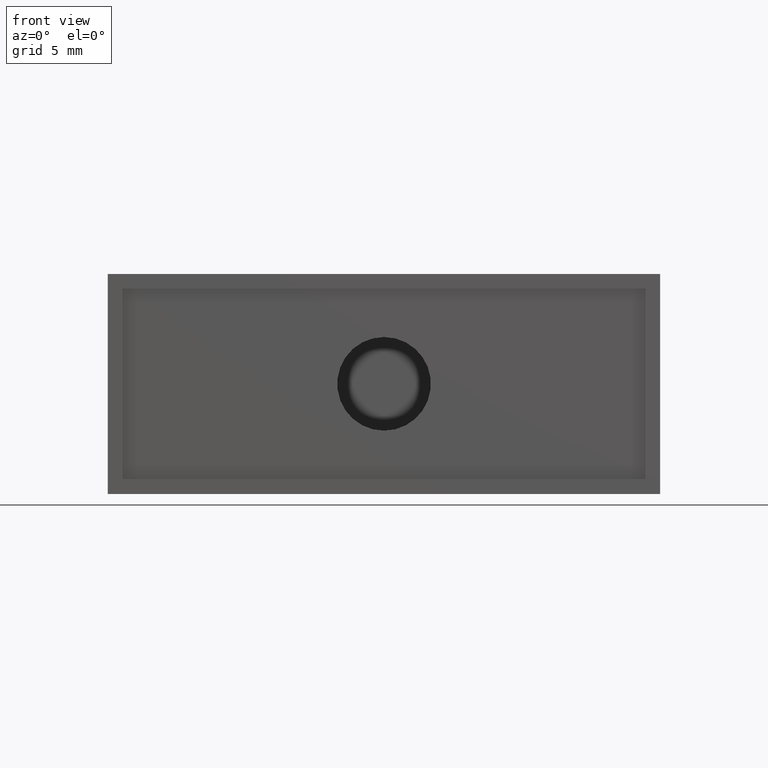
[diagram: clean part render]
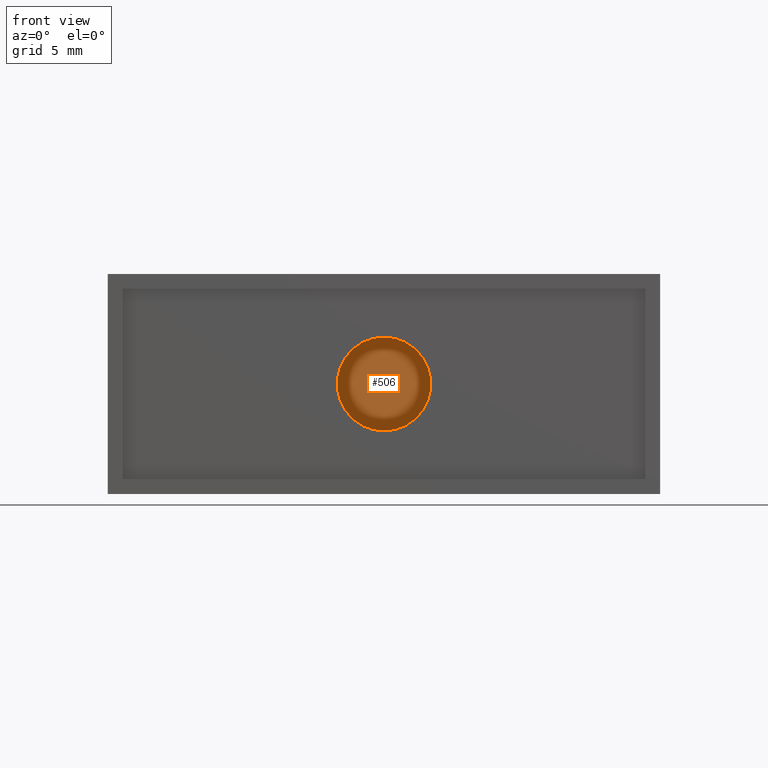
[diagram: same view with one face highlighted and labeled with its STEP entity id]
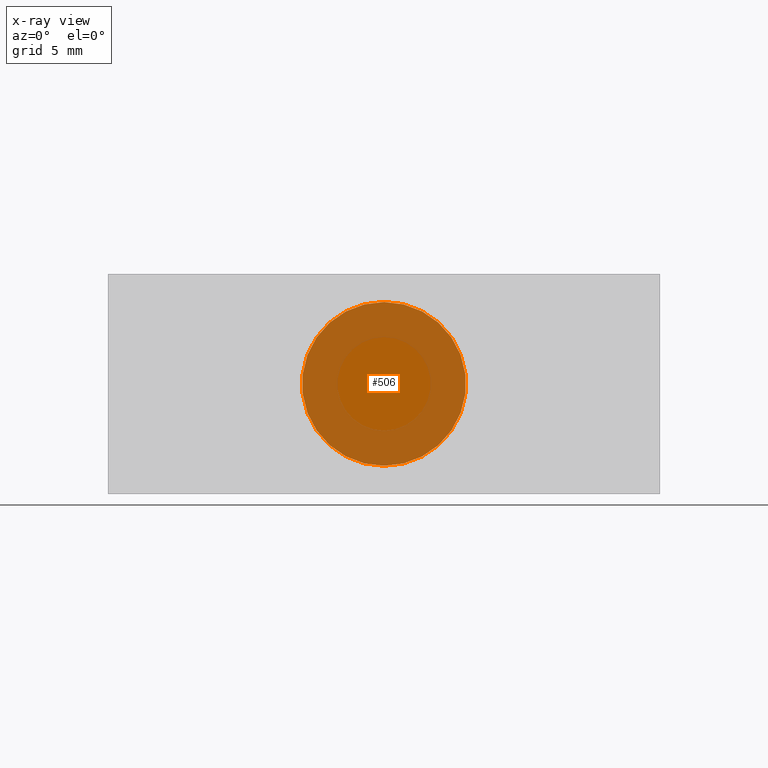
[diagram: x-ray of the same camera — body ghosted, the highlighted face saturated]
A machine part, front view. The second image highlights one B-rep face of the part: STEP entity #506.
The next image is the same camera in x-ray: the body ghosted, the highlighted face saturated — about 67% of this face is hidden behind the body in this view.
In plain terms, the highlighted planar face has unit normal (0, -1, -0).
Its self-contained STEP definition (entity closure, byte-faithful):
#56 = VERTEX_POINT ( 'NONE', #1682 ) ;
#65 = EDGE_CURVE ( 'NONE', #56, #90, #1620, .T. ) ;
#90 = VERTEX_POINT ( 'NONE', #671 ) ;
#499 = EDGE_LOOP ( 'NONE', ( #502, #500 ) ) ;
#500 = ORIENTED_EDGE ( 'NONE', *, *, #65, .F. ) ;
#502 = ORIENTED_EDGE ( 'NONE', *, *, #543, .F. ) ;
#506 = ADVANCED_FACE ( 'NONE', ( #1455 ), #1402, .T. ) ;
#543 = EDGE_CURVE ( 'NONE', #90, #56, #1357, .T. ) ;
#671 = CARTESIAN_POINT ( 'NONE',  ( 0.0000000000000000000, -0.2449999999999994700, 0.4099999999999999800 ) ) ;
#1353 = DIRECTION ( 'NONE',  ( 0.0000000000000000000, 0.0000000000000000000, 1.000000000000000000 ) ) ;
#1354 = DIRECTION ( 'NONE',  ( -0.0000000000000000000, 1.000000000000000000, 7.639631403992348300E-017 ) ) ;
#1355 = CARTESIAN_POINT ( 'NONE',  ( 0.0000000000000000000, -0.2449999999999994700, 0.2349999999999999600 ) ) ;
#1356 = AXIS2_PLACEMENT_3D ( 'NONE', #1355, #1354, #1353 ) ;
#1357 = CIRCLE ( 'NONE', #1356, 0.1750000000000000400 ) ;
#1398 = DIRECTION ( 'NONE',  ( 0.0000000000000000000, 7.639631403992348300E-017, -1.000000000000000000 ) ) ;
#1399 = DIRECTION ( 'NONE',  ( 0.0000000000000000000, -1.000000000000000000, -7.639631403992348300E-017 ) ) ;
#1400 = AXIS2_PLACEMENT_3D ( 'NONE', #1401, #1399, #1398 ) ;
#1401 = CARTESIAN_POINT ( 'NONE',  ( -5.522673533658303800E-017, -0.2449999999999994700, 0.2349999999999999600 ) ) ;
#1402 = PLANE ( 'NONE',  #1400 ) ;
#1455 = FACE_OUTER_BOUND ( 'NONE', #499, .T. ) ;
#1616 = DIRECTION ( 'NONE',  ( 0.0000000000000000000, 0.0000000000000000000, 1.000000000000000000 ) ) ;
#1617 = DIRECTION ( 'NONE',  ( -0.0000000000000000000, 1.000000000000000000, 7.639631403992348300E-017 ) ) ;
#1618 = CARTESIAN_POINT ( 'NONE',  ( 0.0000000000000000000, -0.2449999999999994700, 0.2349999999999999600 ) ) ;
#1619 = AXIS2_PLACEMENT_3D ( 'NONE', #1618, #1617, #1616 ) ;
#1620 = CIRCLE ( 'NONE', #1619, 0.1750000000000000400 ) ;
#1682 = CARTESIAN_POINT ( 'NONE',  ( 2.143131898507868300E-017, -0.2449999999999994700, 0.05999999999999994200 ) ) ;